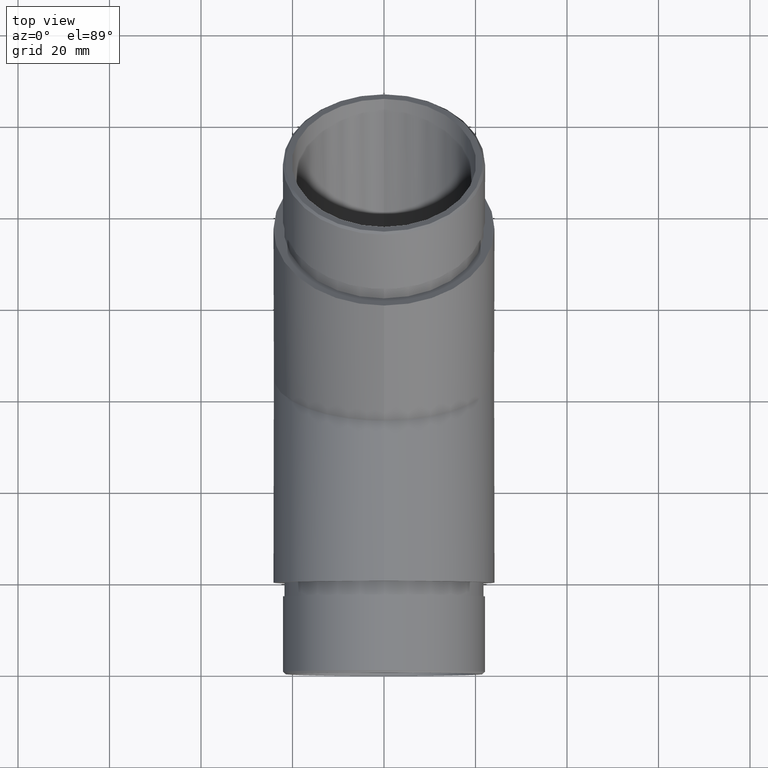
[diagram: clean part render]
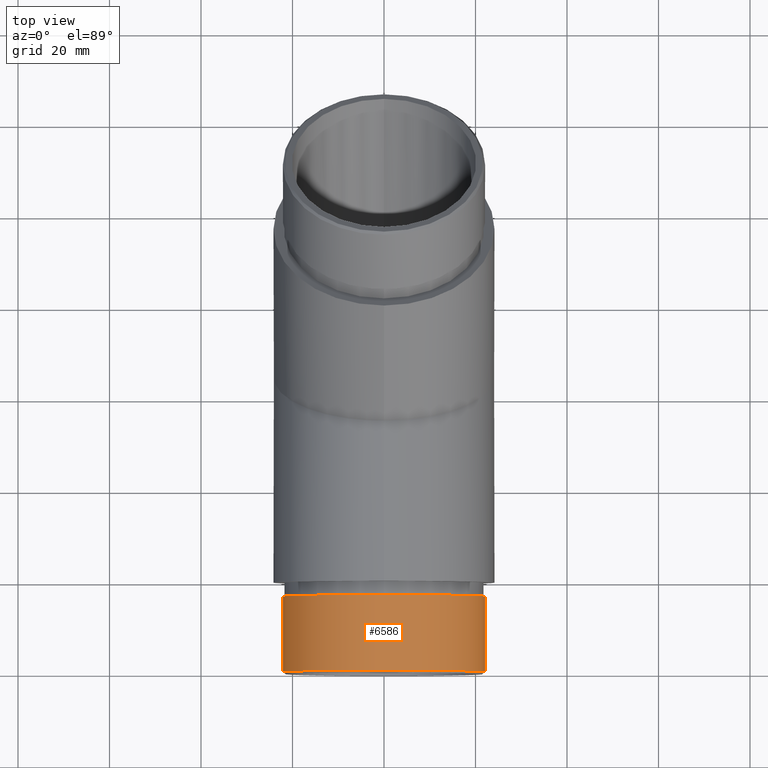
[diagram: same view with one face highlighted and labeled with its STEP entity id]
A machine part, top view. The second image highlights one B-rep face of the part: STEP entity #6586.
In plain terms, the highlighted cylindrical surface (bore or boss wall) has radius 22.1 mm, axis along (-0, 1, -0).
Its self-contained STEP definition (entity closure, byte-faithful):
#434 = CIRCLE ( 'NONE', #817, 22.10000000000000100 ) ;
#805 = EDGE_LOOP ( 'NONE', ( #9058 ) ) ;
#817 = AXIS2_PLACEMENT_3D ( 'NONE', #10160, #1891, #10069 ) ;
#1394 = EDGE_LOOP ( 'NONE', ( #7689 ) ) ;
#1863 = CIRCLE ( 'NONE', #9353, 22.10000000000000100 ) ;
#1891 = DIRECTION ( 'NONE',  ( 0.0000000000000000000, 1.000000000000000000, 0.0000000000000000000 ) ) ;
#2169 = DIRECTION ( 'NONE',  ( 0.0000000000000000000, 0.0000000000000000000, 1.000000000000000000 ) ) ;
#3522 = CARTESIAN_POINT ( 'NONE',  ( 0.0000000000000000000, -3.000000000000000000, 0.0000000000000000000 ) ) ;
#3860 = CARTESIAN_POINT ( 'NONE',  ( 0.0000000000000000000, -19.49999999999997200, -22.10000000000000100 ) ) ;
#4296 = EDGE_CURVE ( 'NONE', #11200, #11200, #434, .T. ) ;
#4571 = DIRECTION ( 'NONE',  ( 0.0000000000000000000, -1.000000000000000000, 0.0000000000000000000 ) ) ;
#5014 = FACE_OUTER_BOUND ( 'NONE', #805, .T. ) ;
#6336 = EDGE_CURVE ( 'NONE', #9340, #9340, #1863, .T. ) ;
#6586 = ADVANCED_FACE ( 'NONE', ( #7463, #5014 ), #9617, .T. ) ;
#6979 = AXIS2_PLACEMENT_3D ( 'NONE', #7738, #10435, #2169 ) ;
#7307 = DIRECTION ( 'NONE',  ( 0.0000000000000000000, 0.0000000000000000000, -1.000000000000000000 ) ) ;
#7382 = CARTESIAN_POINT ( 'NONE',  ( 0.0000000000000000000, -3.000000000000000000, -22.10000000000000100 ) ) ;
#7463 = FACE_OUTER_BOUND ( 'NONE', #1394, .T. ) ;
#7689 = ORIENTED_EDGE ( 'NONE', *, *, #4296, .T. ) ;
#7738 = CARTESIAN_POINT ( 'NONE',  ( 0.0000000000000000000, -20.00000000000000000, 0.0000000000000000000 ) ) ;
#9058 = ORIENTED_EDGE ( 'NONE', *, *, #6336, .T. ) ;
#9340 = VERTEX_POINT ( 'NONE', #7382 ) ;
#9353 = AXIS2_PLACEMENT_3D ( 'NONE', #3522, #4571, #7307 ) ;
#9617 = CYLINDRICAL_SURFACE ( 'NONE', #6979, 22.10000000000000100 ) ;
#10069 = DIRECTION ( 'NONE',  ( 0.0000000000000000000, 0.0000000000000000000, -1.000000000000000000 ) ) ;
#10160 = CARTESIAN_POINT ( 'NONE',  ( 0.0000000000000000000, -19.49999999999997200, 0.0000000000000000000 ) ) ;
#10435 = DIRECTION ( 'NONE',  ( -0.0000000000000000000, 1.000000000000000000, -0.0000000000000000000 ) ) ;
#11200 = VERTEX_POINT ( 'NONE', #3860 ) ;